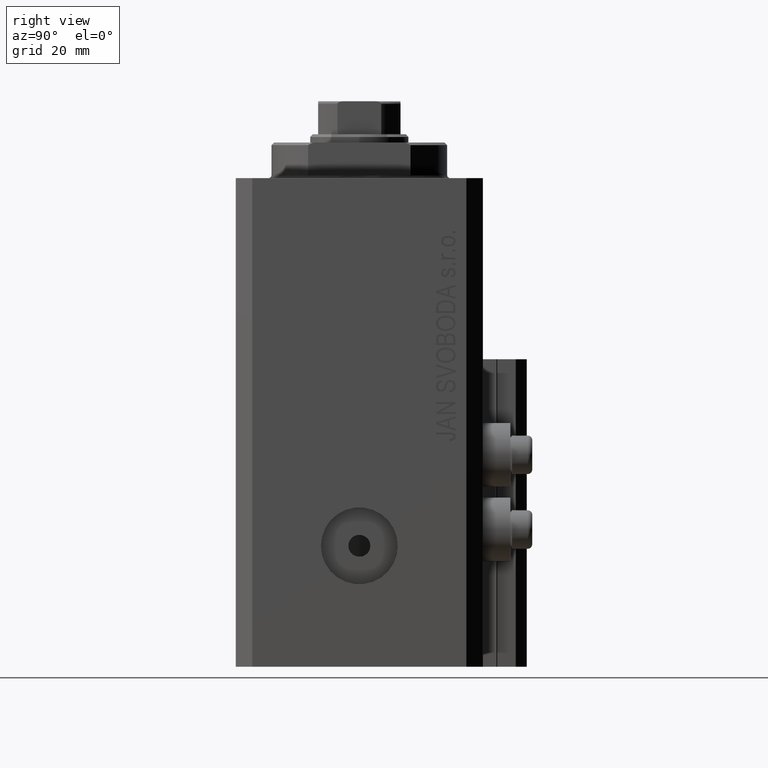
[diagram: clean part render]
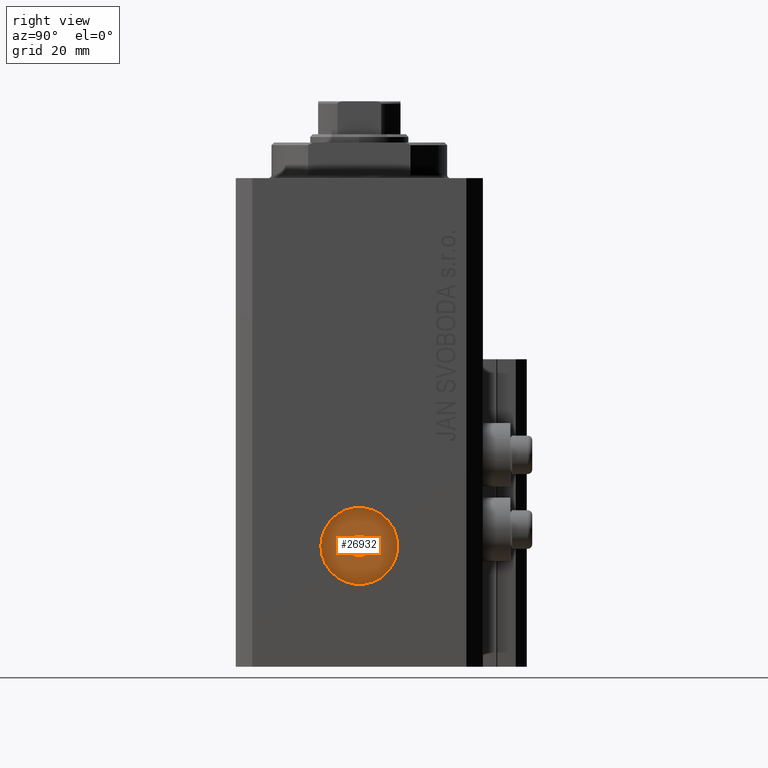
[diagram: same view with one face highlighted and labeled with its STEP entity id]
A machine part, right view. The second image highlights one B-rep face of the part: STEP entity #26932.
In plain terms, the highlighted planar face has unit normal (1, -0, 0).
Its self-contained STEP definition (entity closure, byte-faithful):
#1022 = DIRECTION ( 'NONE',  ( 1.000000000000000000, -1.334402673828349134E-14, 0.000000000000000000 ) ) ;
#1259 = CARTESIAN_POINT ( 'NONE',  ( 27.99999999999686651, 7.000000000000042633, -67.00000000000000000 ) ) ;
#1368 = DIRECTION ( 'NONE',  ( 1.338215252896394112E-14, 1.000000000000000000, 0.000000000000000000 ) ) ;
#2531 = EDGE_CURVE ( 'NONE', #13573, #7278, #30579, .T. ) ;
#3454 = CIRCLE ( 'NONE', #22541, 7.000000000000000000 ) ;
#3898 = FACE_BOUND ( 'NONE', #5930, .T. ) ;
#5571 = EDGE_CURVE ( 'NONE', #23622, #37878, #37608, .T. ) ;
#5930 = EDGE_LOOP ( 'NONE', ( #24683, #39630 ) ) ;
#6289 = EDGE_LOOP ( 'NONE', ( #20730, #26325 ) ) ;
#7217 = CARTESIAN_POINT ( 'NONE',  ( 27.99999999999677414, 4.270088556253900439E-14, -67.00000000000000000 ) ) ;
#7278 = VERTEX_POINT ( 'NONE', #38673 ) ;
#8635 = AXIS2_PLACEMENT_3D ( 'NONE', #30723, #34064, #1368 ) ;
#10175 = FACE_OUTER_BOUND ( 'NONE', #6289, .T. ) ;
#13573 = VERTEX_POINT ( 'NONE', #16806 ) ;
#16655 = EDGE_CURVE ( 'NONE', #7278, #13573, #39334, .T. ) ;
#16806 = CARTESIAN_POINT ( 'NONE',  ( 27.99999999999680256, 2.000000000000038636, -67.00000000000000000 ) ) ;
#16855 = DIRECTION ( 'NONE',  ( 1.338215252896394112E-14, 1.000000000000000000, 0.000000000000000000 ) ) ;
#17307 = CARTESIAN_POINT ( 'NONE',  ( 27.99999999999677414, 4.270088556253900439E-14, -67.00000000000000000 ) ) ;
#19545 = CARTESIAN_POINT ( 'NONE',  ( 27.99999999999668177, -6.999999999999957367, -67.00000000000000000 ) ) ;
#20730 = ORIENTED_EDGE ( 'NONE', *, *, #5571, .T. ) ;
#22541 = AXIS2_PLACEMENT_3D ( 'NONE', #45259, #26889, #16855 ) ;
#23622 = VERTEX_POINT ( 'NONE', #1259 ) ;
#24683 = ORIENTED_EDGE ( 'NONE', *, *, #2531, .F. ) ;
#26325 = ORIENTED_EDGE ( 'NONE', *, *, #34102, .T. ) ;
#26889 = DIRECTION ( 'NONE',  ( 1.000000000000000000, -1.334402673828349134E-14, 0.000000000000000000 ) ) ;
#26932 = ADVANCED_FACE ( 'NONE', ( #3898, #10175 ), #44236, .T. ) ;
#28769 = DIRECTION ( 'NONE',  ( 1.000000000000000000, -1.334402673828349134E-14, 0.000000000000000000 ) ) ;
#29437 = DIRECTION ( 'NONE',  ( 1.000000000000000000, -1.334402673828349134E-14, 0.000000000000000000 ) ) ;
#30579 = CIRCLE ( 'NONE', #40481, 1.999999999999996225 ) ;
#30723 = CARTESIAN_POINT ( 'NONE',  ( 27.99999999999677414, 4.270088556253899177E-14, -67.00000000000000000 ) ) ;
#32087 = DIRECTION ( 'NONE',  ( 1.387778780781448358E-14, 1.000000000000000000, 0.000000000000000000 ) ) ;
#33240 = DIRECTION ( 'NONE',  ( 1.387778780781448358E-14, 1.000000000000000000, 0.000000000000000000 ) ) ;
#34064 = DIRECTION ( 'NONE',  ( 1.000000000000000000, -1.334402673828349134E-14, 0.000000000000000000 ) ) ;
#34102 = EDGE_CURVE ( 'NONE', #37878, #23622, #3454, .T. ) ;
#34393 = AXIS2_PLACEMENT_3D ( 'NONE', #37306, #1022, #46690 ) ;
#37306 = CARTESIAN_POINT ( 'NONE',  ( 27.99999999999677414, 4.270088556253899177E-14, -67.00000000000000000 ) ) ;
#37608 = CIRCLE ( 'NONE', #8635, 7.000000000000000000 ) ;
#37810 = AXIS2_PLACEMENT_3D ( 'NONE', #7217, #29437, #33240 ) ;
#37878 = VERTEX_POINT ( 'NONE', #19545 ) ;
#38673 = CARTESIAN_POINT ( 'NONE',  ( 27.99999999999674571, -1.999999999999953593, -67.00000000000000000 ) ) ;
#39334 = CIRCLE ( 'NONE', #37810, 1.999999999999996225 ) ;
#39630 = ORIENTED_EDGE ( 'NONE', *, *, #16655, .F. ) ;
#40481 = AXIS2_PLACEMENT_3D ( 'NONE', #17307, #28769, #32087 ) ;
#44236 = PLANE ( 'NONE',  #34393 ) ;
#45259 = CARTESIAN_POINT ( 'NONE',  ( 27.99999999999677414, 4.270088556253899177E-14, -67.00000000000000000 ) ) ;
#46690 = DIRECTION ( 'NONE',  ( 1.334402673828349134E-14, 1.000000000000000000, 0.000000000000000000 ) ) ;